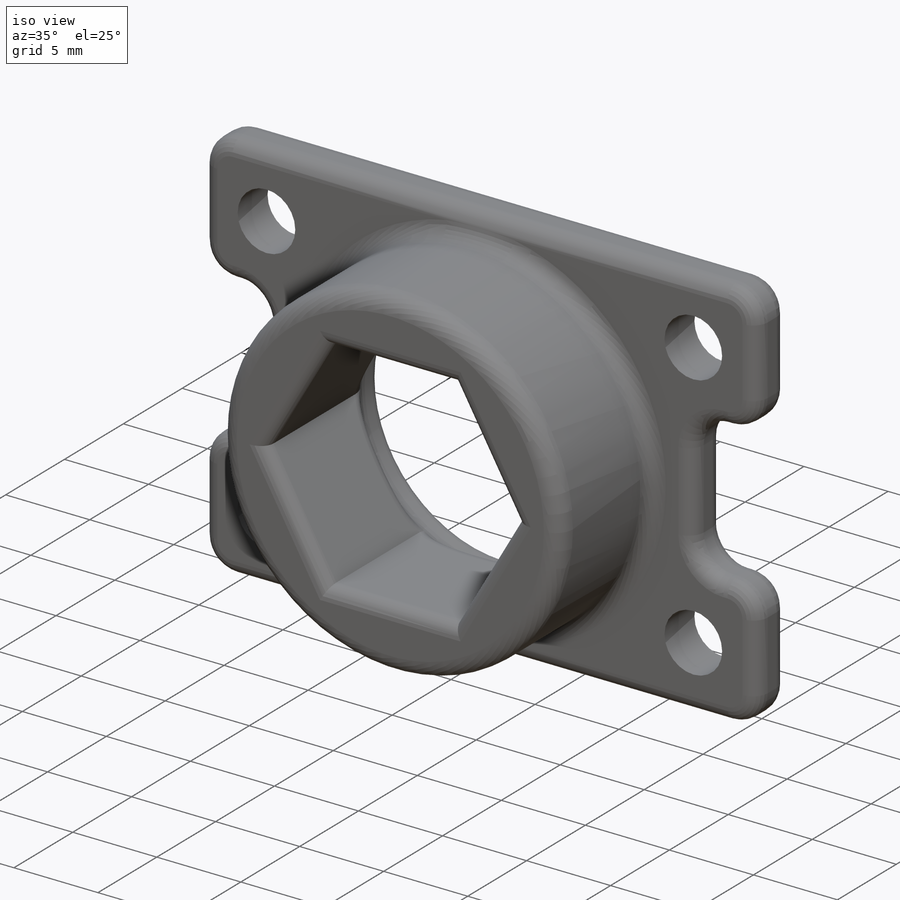
[diagram: iso view]
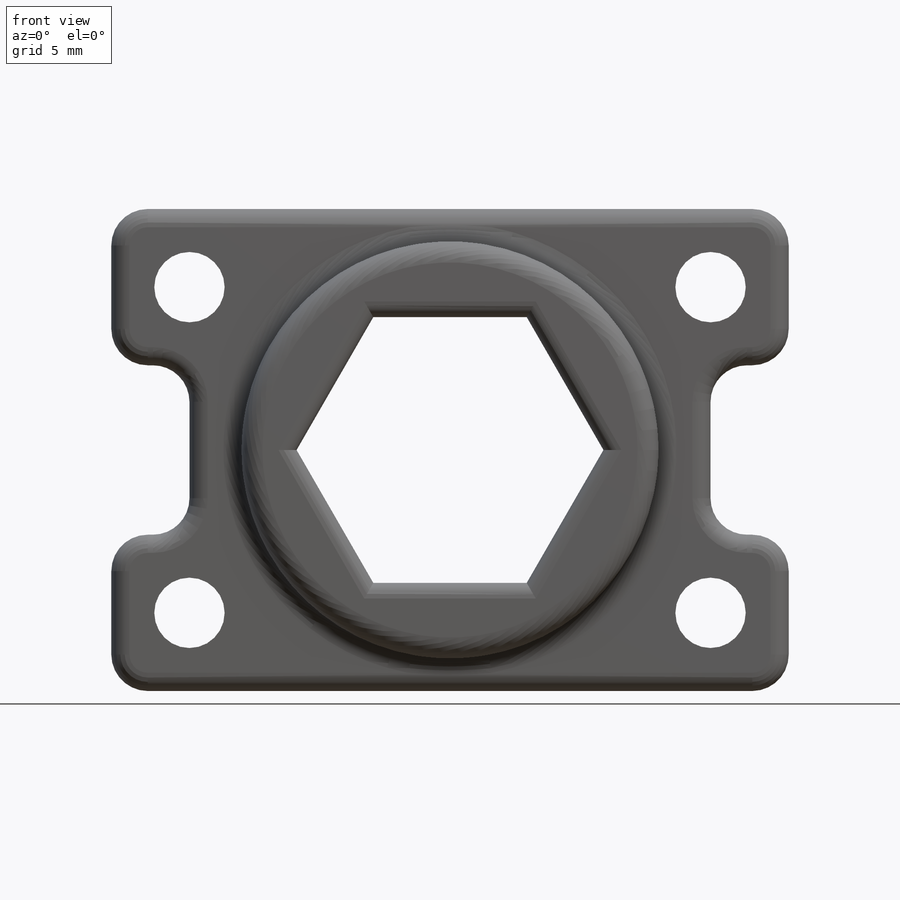
[diagram: front view]
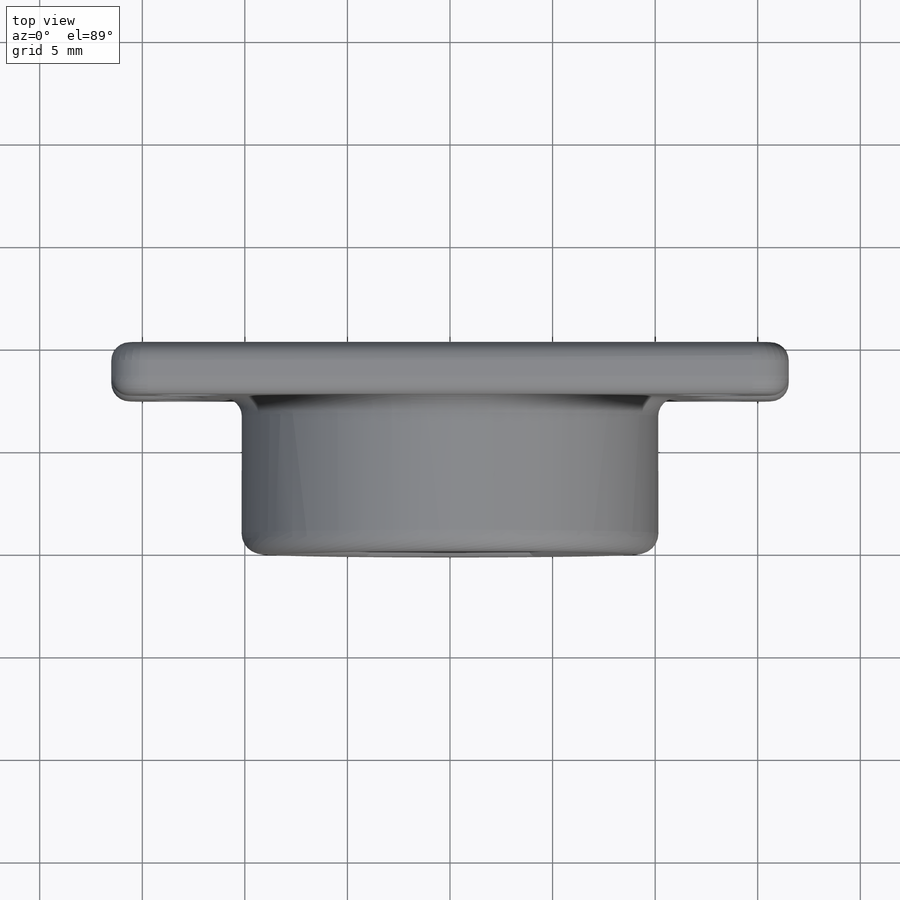
[diagram: top view]
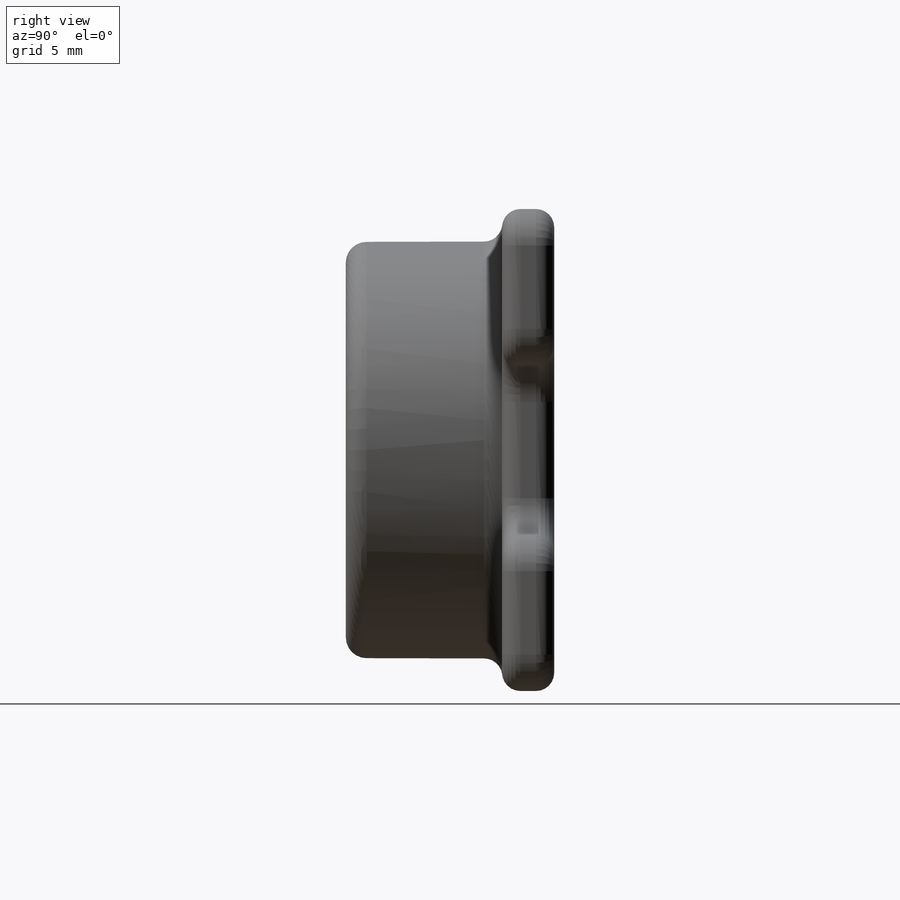
[diagram: right view]
SOLIDWORKS PART (.sldprt)
format: sldprt  version: not decoded by parser v0  size: 553,984 bytes
history: native  units: mm
features: fillet x6, sketch x4, extrude x2, material x1, cut_extrude x1, cut_revolve x1 (+11 scaffold rows collapsed)
feature tree (26):
  scaffold x11  (default folders/planes/origin — collapsed)
  material  "Material <not specified>"
  sketch  "Sketch1"  dims[c1.D1=~10.41114mm c1.D5=5.08mm c1.D7=7.62mm c2.D1=15.875mm c2.D2=10.795mm c2.D3=7.62mm c2.D4=3.81mm c2.D5=3.81mm c2.D6=3.81mm c3.D1=12.7mm c3.D2=7.9375mm]
  extrude  "Boss-Extrude1"  Depth=2.54mm
  fillet  "Fillet1"  Radius=1.778mm
  sketch  "Sketch2"  dims[D1=10.795mm]
  extrude  "Boss-Extrude2"  Depth=7.62mm
  fillet  "Fillet3"  Radius=0.889mm
  fillet  "Fillet4"  Radius=0.889mm
  sketch  "Sketch3"  dims[D1=~6.502779mm D2=~10.516045mm]
  cut_extrude  "Cut-Extrude1"  [1 undecoded]
  sketch  "Sketch4"  dims[c1.D1=1.27mm c1.D2=7.3025mm c2.D1=5.08mm c2.D2=1.27mm c2.D3=1.27mm c2.D4=1.27mm c2.D5=2.667mm c3.D2=~172.271345deg]
  cut_revolve  "Cut-Revolve2"  Angle=360deg
  fillet  "Fillet5"  Radius=0.635mm
  fillet  "Fillet6"  Radius=0.762mm
  fillet  "Fillet7"  Radius=1.016mm
decode coverage: 13 of 14 modeling features carry decoded parameters
note: ~ marks probable driven/reference dimensions
note: 1 parameter value undecoded
note: suppression state not decoded; provenance and decode notes live in map.json
